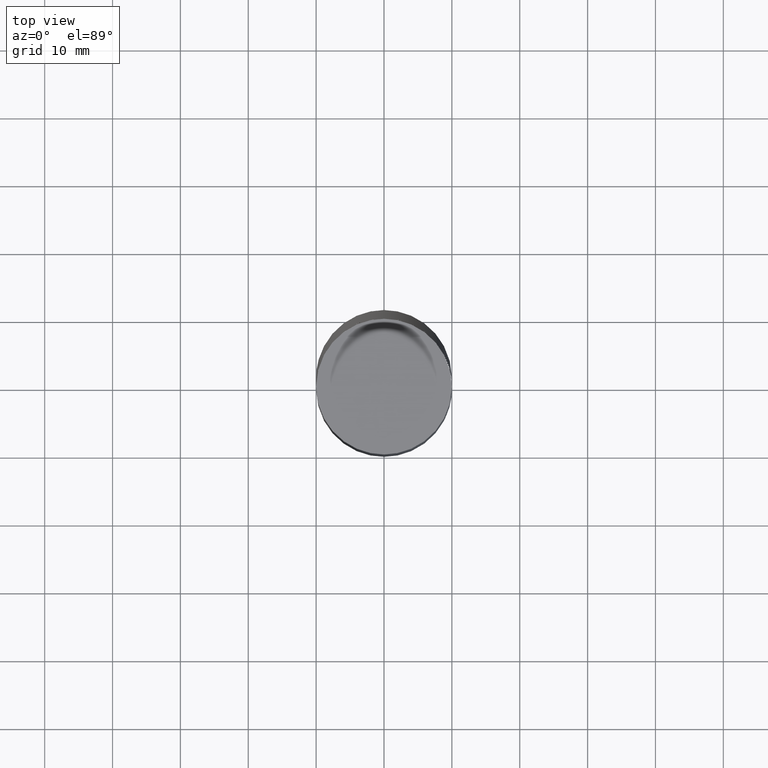
[diagram: clean part render]
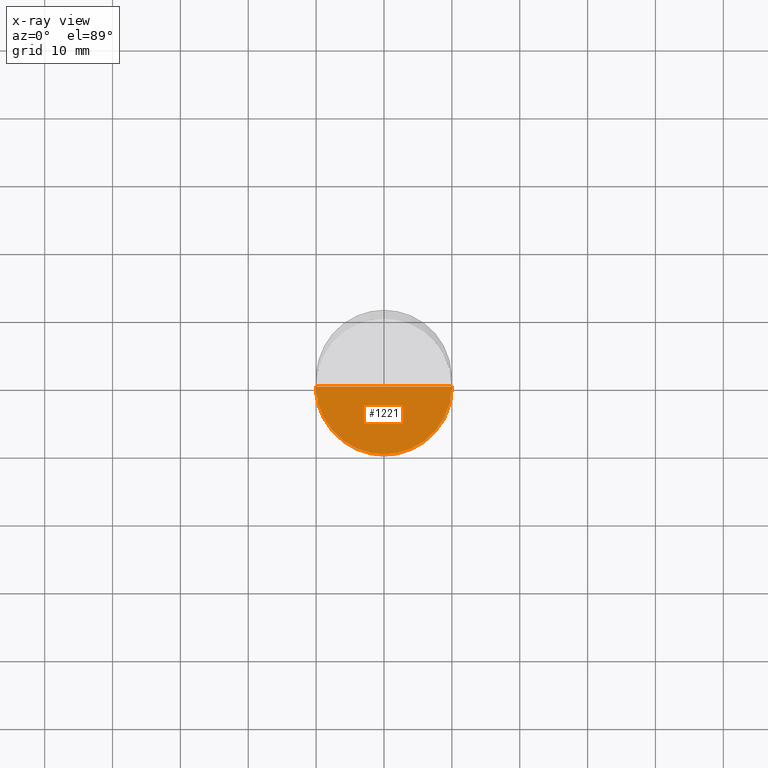
[diagram: x-ray — body ghosted, one internal face saturated and labeled with its STEP entity id]
A machine part, top view, then the same camera in x-ray: the body is ghosted and one INTERNAL B-rep face — a face not visible from any outside direction — is saturated and labeled: STEP entity #1221.
In plain terms, the highlighted face is a freeform B-spline surface patch.
Its self-contained STEP definition (entity closure, byte-faithful):
#1071=CARTESIAN_POINT('',(10.0,0.0,-5.0));
#1075=CARTESIAN_POINT('',(-10.0,0.0,-5.0));
#1076=CARTESIAN_POINT('',(0.0,0.0,-5.0));
#1083=CARTESIAN_POINT('',(-10.0,-10.0,-5.0));
#1084=CARTESIAN_POINT('',(0.0,-10.0,-5.0));
#1085=CARTESIAN_POINT('',(10.0,-10.0,-5.0));
#1206=(
BOUNDED_SURFACE()
B_SPLINE_SURFACE(1,2,(
(#1075,#1083,#1084,#1085,#1071),
(#1076,#1076,#1076,#1076,#1076)
), .UNSPECIFIED.,.F.,.F.,.F.)
B_SPLINE_SURFACE_WITH_KNOTS((2,2),(3,2,3),(
0.0,1.0),(
0.0,0.5,1.0), .UNSPECIFIED.)
GEOMETRIC_REPRESENTATION_ITEM()
RATIONAL_B_SPLINE_SURFACE(((1.0,0.707106781187,1.0,0.707106781187,1.0),
(1.0,0.707106781187,1.0,0.707106781187,1.0)
))
REPRESENTATION_ITEM('')
SURFACE()
);
#1207=(
BOUNDED_CURVE()
B_SPLINE_CURVE(2,(#1071,#1085,#1084,#1083,#1075),.UNSPECIFIED.,.F.,.F.)
B_SPLINE_CURVE_WITH_KNOTS((3,2,3),
(0.0,0.5,1.0),.UNSPECIFIED.)
CURVE()
GEOMETRIC_REPRESENTATION_ITEM()
RATIONAL_B_SPLINE_CURVE((1.0,0.707106781187,1.0,0.707106781187,1.0))
REPRESENTATION_ITEM('')
);
#1208=(
BOUNDED_CURVE()
B_SPLINE_CURVE(1,(#1075,#1076),.UNSPECIFIED.,.F.,.F.)
B_SPLINE_CURVE_WITH_KNOTS((2,2),
(0.0,1.0),.UNSPECIFIED.)
CURVE()
GEOMETRIC_REPRESENTATION_ITEM()
RATIONAL_B_SPLINE_CURVE((1.0,1.0))
REPRESENTATION_ITEM('')
);
#1209=(
BOUNDED_CURVE()
B_SPLINE_CURVE(1,(#1076,#1071),.UNSPECIFIED.,.F.,.F.)
B_SPLINE_CURVE_WITH_KNOTS((2,2),
(0.0,1.0),.UNSPECIFIED.)
CURVE()
GEOMETRIC_REPRESENTATION_ITEM()
RATIONAL_B_SPLINE_CURVE((1.0,1.0))
REPRESENTATION_ITEM('')
);
#1210=VERTEX_POINT('',#1071);
#1211=VERTEX_POINT('',#1075);
#1212=VERTEX_POINT('',#1076);
#1213=EDGE_CURVE('',#1210,#1211,#1207,.T.);
#1214=EDGE_CURVE('',#1211,#1212,#1208,.T.);
#1215=EDGE_CURVE('',#1212,#1210,#1209,.T.);
#1216=ORIENTED_EDGE('',*,*,#1213,.T.);
#1217=ORIENTED_EDGE('',*,*,#1214,.T.);
#1218=ORIENTED_EDGE('',*,*,#1215,.T.);
#1219=EDGE_LOOP('',(#1216,#1217,#1218));
#1220=FACE_OUTER_BOUND('',#1219,.T.);
#1221=ADVANCED_FACE('',(#1220),#1206,.T.);